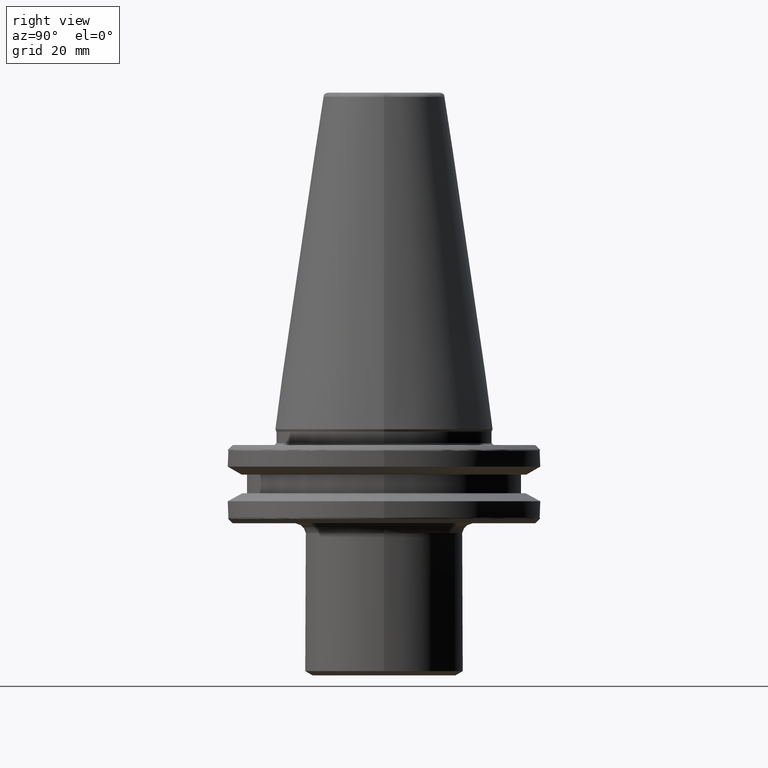
[diagram: clean part render]
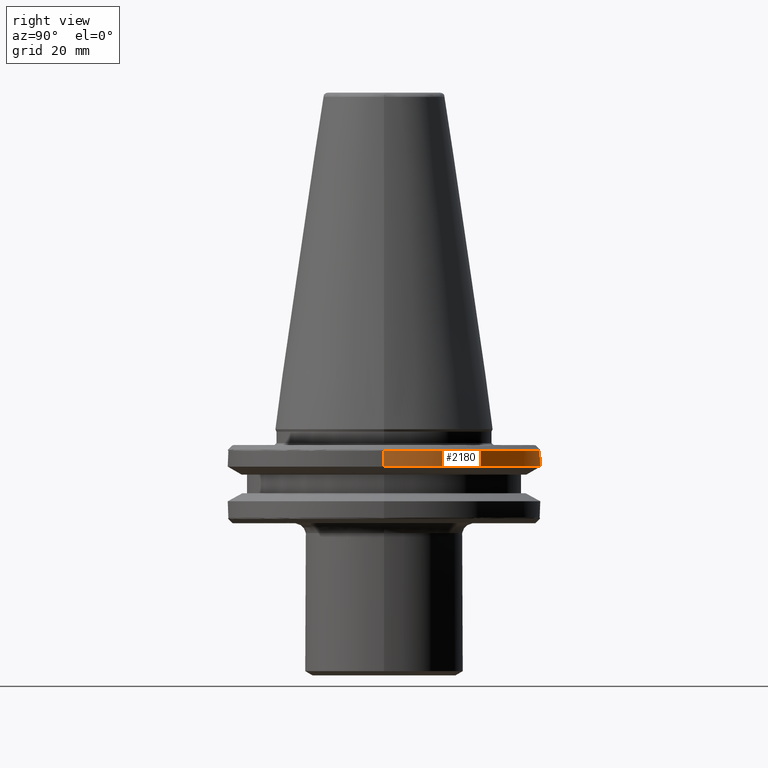
[diagram: same view with one face highlighted and labeled with its STEP entity id]
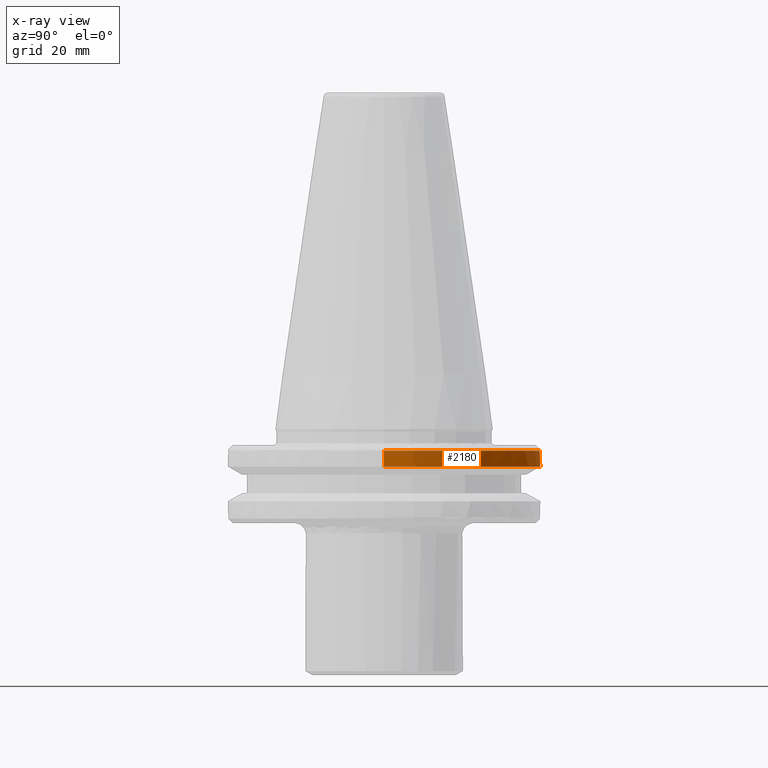
[diagram: x-ray of the same camera — body ghosted, the highlighted face saturated]
A machine part, right view. The second image highlights one B-rep face of the part: STEP entity #2180.
The next image is the same camera in x-ray: the body ghosted, the highlighted face saturated — about 0% of this face is hidden behind the body in this view.
In plain terms, the highlighted cylindrical surface (partial cylindrical patch) has radius 31.75 mm, axis along (0, 0, 1).
Its self-contained STEP definition (entity closure, byte-faithful):
#13 = CARTESIAN_POINT ( 'NONE',  ( 0.0000000000000000000, 0.0000000000000000000, 69.75694866325665100 ) ) ;
#202 = CIRCLE ( 'NONE', #1814, 31.75000000000000000 ) ;
#212 = CARTESIAN_POINT ( 'NONE',  ( -31.75000000000000000, 3.888253587292846500E-015, -4.365685424949236700 ) ) ;
#330 = EDGE_CURVE ( 'NONE', #2080, #791, #202, .T. ) ;
#512 = DIRECTION ( 'NONE',  ( 1.000000000000000000, 0.0000000000000000000, 0.0000000000000000000 ) ) ;
#531 = DIRECTION ( 'NONE',  ( 0.0000000000000000000, 0.0000000000000000000, 1.000000000000000000 ) ) ;
#660 = ORIENTED_EDGE ( 'NONE', *, *, #2870, .T. ) ;
#700 = DIRECTION ( 'NONE',  ( 1.000000000000000000, 0.0000000000000000000, 0.0000000000000000000 ) ) ;
#742 = CIRCLE ( 'NONE', #1880, 31.75000000000000000 ) ;
#747 = CARTESIAN_POINT ( 'NONE',  ( 0.0000000000000000000, 0.0000000000000000000, -4.365685424949244700 ) ) ;
#771 = DIRECTION ( 'NONE',  ( 0.0000000000000000000, 0.0000000000000000000, 1.000000000000000000 ) ) ;
#775 = CARTESIAN_POINT ( 'NONE',  ( -31.75000000000000000, 3.888253587292846500E-015, -7.578163357943284800 ) ) ;
#791 = VERTEX_POINT ( 'NONE', #1339 ) ;
#805 = EDGE_CURVE ( 'NONE', #891, #2080, #2549, .T. ) ;
#891 = VERTEX_POINT ( 'NONE', #775 ) ;
#1020 = DIRECTION ( 'NONE',  ( -8.728168432587708200E-016, -0.0000000000000000000, -1.000000000000000000 ) ) ;
#1045 = AXIS2_PLACEMENT_3D ( 'NONE', #13, #2555, #2240 ) ;
#1129 = CARTESIAN_POINT ( 'NONE',  ( 0.0000000000000000000, 0.0000000000000000000, -4.365685424949236700 ) ) ;
#1157 = DIRECTION ( 'NONE',  ( 0.0000000000000000000, 0.0000000000000000000, 1.000000000000000000 ) ) ;
#1298 = FACE_OUTER_BOUND ( 'NONE', #1629, .T. ) ;
#1327 = ORIENTED_EDGE ( 'NONE', *, *, #3021, .T. ) ;
#1333 = CYLINDRICAL_SURFACE ( 'NONE', #1045, 31.75000000000000000 ) ;
#1339 = CARTESIAN_POINT ( 'NONE',  ( -8.717907037342230900, 30.52966748735169100, -4.365685424949237600 ) ) ;
#1388 = AXIS2_PLACEMENT_3D ( 'NONE', #2539, #2425, #2415 ) ;
#1401 = CIRCLE ( 'NONE', #2854, 31.74999999999997900 ) ;
#1433 = AXIS2_PLACEMENT_3D ( 'NONE', #747, #771, #700 ) ;
#1629 = EDGE_LOOP ( 'NONE', ( #660, #2591, #2296, #1987, #1722, #1701, #1327 ) ) ;
#1657 = VERTEX_POINT ( 'NONE', #1978 ) ;
#1701 = ORIENTED_EDGE ( 'NONE', *, *, #2960, .F. ) ;
#1707 = CARTESIAN_POINT ( 'NONE',  ( 31.75000000000000000, 0.0000000000000000000, 69.75694866325665100 ) ) ;
#1722 = ORIENTED_EDGE ( 'NONE', *, *, #2971, .F. ) ;
#1814 = AXIS2_PLACEMENT_3D ( 'NONE', #1129, #2299, #1885 ) ;
#1844 = DIRECTION ( 'NONE',  ( 0.0000000000000000000, 0.0000000000000000000, 1.000000000000000000 ) ) ;
#1880 = AXIS2_PLACEMENT_3D ( 'NONE', #2697, #531, #512 ) ;
#1885 = DIRECTION ( 'NONE',  ( 1.000000000000000000, 8.881784197001252300E-016, 0.0000000000000000000 ) ) ;
#1978 = CARTESIAN_POINT ( 'NONE',  ( 31.75000000000000000, 0.0000000000000000000, -7.578163357943284800 ) ) ;
#1987 = ORIENTED_EDGE ( 'NONE', *, *, #2250, .T. ) ;
#2080 = VERTEX_POINT ( 'NONE', #212 ) ;
#2083 = LINE ( 'NONE', #1707, #2106 ) ;
#2106 = VECTOR ( 'NONE', #1844, 1000.000000000000000 ) ;
#2108 = CIRCLE ( 'NONE', #1433, 31.75000000000000000 ) ;
#2180 = ADVANCED_FACE ( 'NONE', ( #1298 ), #1333, .T. ) ;
#2217 = CIRCLE ( 'NONE', #1388, 31.75000000000000000 ) ;
#2240 = DIRECTION ( 'NONE',  ( 1.000000000000000000, 0.0000000000000000000, 0.0000000000000000000 ) ) ;
#2250 = EDGE_CURVE ( 'NONE', #791, #2440, #1401, .T. ) ;
#2286 = VERTEX_POINT ( 'NONE', #2304 ) ;
#2296 = ORIENTED_EDGE ( 'NONE', *, *, #330, .T. ) ;
#2299 = DIRECTION ( 'NONE',  ( -0.0000000000000000000, -0.0000000000000000000, -1.000000000000000000 ) ) ;
#2304 = CARTESIAN_POINT ( 'NONE',  ( 31.75000000000000000, 0.0000000000000000000, -4.365685424949244700 ) ) ;
#2405 = VERTEX_POINT ( 'NONE', #2919 ) ;
#2408 = DIRECTION ( 'NONE',  ( -1.000000000000000000, 0.0000000000000000000, 8.741913579725648200E-016 ) ) ;
#2415 = DIRECTION ( 'NONE',  ( 1.000000000000000000, 0.0000000000000000000, 0.0000000000000000000 ) ) ;
#2425 = DIRECTION ( 'NONE',  ( 0.0000000000000000000, 0.0000000000000000000, 1.000000000000000000 ) ) ;
#2436 = CARTESIAN_POINT ( 'NONE',  ( 8.600431037885710900, 30.56296919415017000, -4.365685424949240300 ) ) ;
#2440 = VERTEX_POINT ( 'NONE', #2436 ) ;
#2539 = CARTESIAN_POINT ( 'NONE',  ( 0.0000000000000000000, 0.0000000000000000000, -7.578163357943284800 ) ) ;
#2549 = LINE ( 'NONE', #2772, #3003 ) ;
#2555 = DIRECTION ( 'NONE',  ( 0.0000000000000000000, 0.0000000000000000000, 1.000000000000000000 ) ) ;
#2591 = ORIENTED_EDGE ( 'NONE', *, *, #805, .T. ) ;
#2697 = CARTESIAN_POINT ( 'NONE',  ( 0.0000000000000000000, 0.0000000000000000000, -7.578163357943284800 ) ) ;
#2772 = CARTESIAN_POINT ( 'NONE',  ( -31.75000000000000000, 3.888253587292846500E-015, 69.75694866325665100 ) ) ;
#2854 = AXIS2_PLACEMENT_3D ( 'NONE', #2975, #1020, #2408 ) ;
#2870 = EDGE_CURVE ( 'NONE', #2405, #891, #742, .T. ) ;
#2919 = CARTESIAN_POINT ( 'NONE',  ( 3.888253587292846500E-015, 31.75000000000000000, -7.578163357943284800 ) ) ;
#2960 = EDGE_CURVE ( 'NONE', #1657, #2286, #2083, .T. ) ;
#2971 = EDGE_CURVE ( 'NONE', #2286, #2440, #2108, .T. ) ;
#2975 = CARTESIAN_POINT ( 'NONE',  ( 1.979925183888475600E-014, 0.0000000000000000000, -4.365685424949215400 ) ) ;
#3003 = VECTOR ( 'NONE', #1157, 1000.000000000000000 ) ;
#3021 = EDGE_CURVE ( 'NONE', #1657, #2405, #2217, .T. ) ;